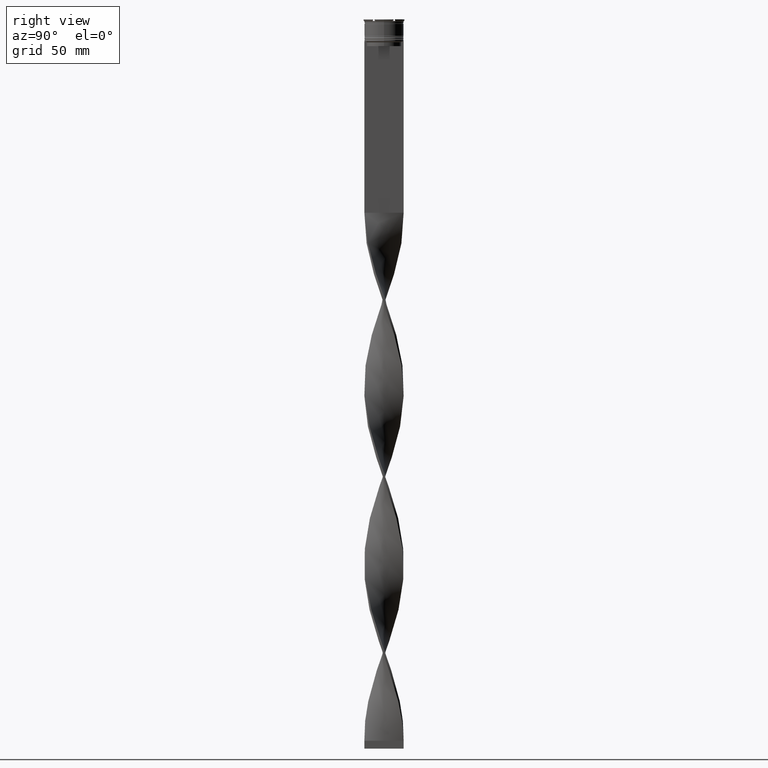
[diagram: clean part render]
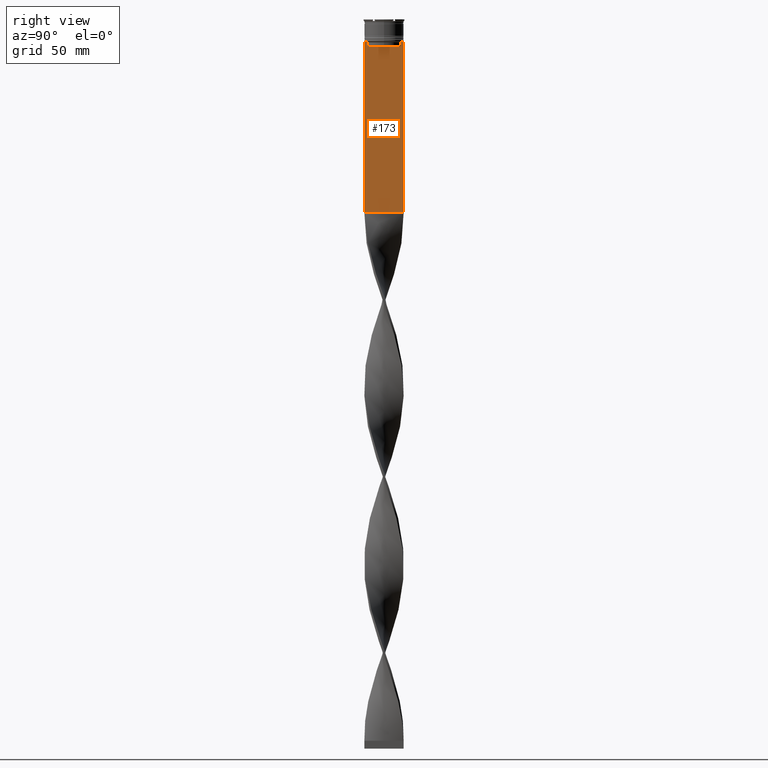
[diagram: same view with one face highlighted and labeled with its STEP entity id]
A machine part, right view. The second image highlights one B-rep face of the part: STEP entity #173.
In plain terms, the highlighted planar face has unit normal (-1, 0, 0).
Its self-contained STEP definition (entity closure, byte-faithful):
#27 = LINE ( 'NONE', #3570, #479 ) ;
#33 = LINE ( 'NONE', #2889, #1585 ) ;
#85 = EDGE_CURVE ( 'NONE', #2115, #1681, #1181, .T. ) ;
#97 = CARTESIAN_POINT ( 'NONE',  ( 0.7500000000000002220, -10.87416663473574197, 0.000000000000000000 ) ) ;
#106 = CARTESIAN_POINT ( 'NONE',  ( 0.7500000000000002220, -12.50000000000000000, 11.04495957273638673 ) ) ;
#107 = VECTOR ( 'NONE', #1839, 1000.000000000000000 ) ;
#115 = EDGE_CURVE ( 'NONE', #2546, #721, #1792, .T. ) ;
#147 = EDGE_CURVE ( 'NONE', #3866, #3305, #3436, .T. ) ;
#173 = ADVANCED_FACE ( 'NONE', ( #2612 ), #431, .F. ) ;
#246 = CARTESIAN_POINT ( 'NONE',  ( 0.7500000000000002220, -11.37530219378809093, -14.00000000000000178 ) ) ;
#261 = CARTESIAN_POINT ( 'NONE',  ( 0.7500000000000002220, -12.50000000000000000, -14.00000000000000178 ) ) ;
#373 = VERTEX_POINT ( 'NONE', #2230 ) ;
#376 = EDGE_CURVE ( 'NONE', #3605, #1296, #33, .T. ) ;
#409 = CARTESIAN_POINT ( 'NONE',  ( 0.7500000000000002220, -12.50000000000000000, 11.04495957273638673 ) ) ;
#424 = DIRECTION ( 'NONE',  ( 0.000000000000000000, 0.000000000000000000, -1.000000000000000000 ) ) ;
#431 = PLANE ( 'NONE',  #2118 ) ;
#479 = VECTOR ( 'NONE', #2487, 1000.000000000000000 ) ;
#494 = LINE ( 'NONE', #97, #2080 ) ;
#707 = VERTEX_POINT ( 'NONE', #1380 ) ;
#721 = VERTEX_POINT ( 'NONE', #2531 ) ;
#734 = CARTESIAN_POINT ( 'NONE',  ( 0.7500000000000002220, 11.04122051153452055, -14.33334204648729404 ) ) ;
#770 = VECTOR ( 'NONE', #1087, 1000.000000000000000 ) ;
#773 = DIRECTION ( 'NONE',  ( -0.000000000000000000, -0.000000000000000000, 1.000000000000000000 ) ) ;
#782 = CARTESIAN_POINT ( 'NONE',  ( 0.7500000000000002220, 11.37530219378809093, -14.00000000000000178 ) ) ;
#790 = LINE ( 'NONE', #3965, #1017 ) ;
#822 = EDGE_LOOP ( 'NONE', ( #3216, #4053, #2295, #1469, #3033, #3211, #3499, #2849, #991, #1512, #2689, #3742 ) ) ;
#865 = CARTESIAN_POINT ( 'NONE',  ( 0.7500000000000002220, -11.20826532207830439, -14.16667499063191826 ) ) ;
#991 = ORIENTED_EDGE ( 'NONE', *, *, #2009, .T. ) ;
#1017 = VECTOR ( 'NONE', #3330, 1000.000000000000000 ) ;
#1087 = DIRECTION ( 'NONE',  ( 0.000000000000000000, -1.000000000000000000, 0.000000000000000000 ) ) ;
#1181 = LINE ( 'NONE', #1580, #2198 ) ;
#1241 = LINE ( 'NONE', #3052, #4379 ) ;
#1296 = VERTEX_POINT ( 'NONE', #2082 ) ;
#1380 = CARTESIAN_POINT ( 'NONE',  ( 0.7500000000000002220, -10.87416663473574197, -14.50000000000000000 ) ) ;
#1434 = CARTESIAN_POINT ( 'NONE',  ( 0.7500000000000002220, 11.20826531587977648, -14.16667499681701514 ) ) ;
#1469 = ORIENTED_EDGE ( 'NONE', *, *, #115, .T. ) ;
#1496 = DIRECTION ( 'NONE',  ( 0.000000000000000000, -1.000000000000000000, 0.000000000000000000 ) ) ;
#1512 = ORIENTED_EDGE ( 'NONE', *, *, #4138, .T. ) ;
#1580 = CARTESIAN_POINT ( 'NONE',  ( 0.7500000000000002220, -12.50000000000000000, -14.00000000000000178 ) ) ;
#1585 = VECTOR ( 'NONE', #424, 1000.000000000000000 ) ;
#1662 = CARTESIAN_POINT ( 'NONE',  ( 0.7500000000000002220, -12.50000000000000000, -123.0000000000000000 ) ) ;
#1681 = VERTEX_POINT ( 'NONE', #2257 ) ;
#1792 = LINE ( 'NONE', #3956, #770 ) ;
#1813 = DIRECTION ( 'NONE',  ( -1.000000000000000000, 0.000000000000000000, 0.000000000000000000 ) ) ;
#1839 = DIRECTION ( 'NONE',  ( 0.000000000000000000, 0.000000000000000000, -1.000000000000000000 ) ) ;
#1841 = CARTESIAN_POINT ( 'NONE',  ( 0.7500000000000002220, 10.87416663473574197, -14.50000000000000000 ) ) ;
#1927 = CARTESIAN_POINT ( 'NONE',  ( 0.7500000000000002220, -12.50000000000000000, -14.00000000000000178 ) ) ;
#2009 = EDGE_CURVE ( 'NONE', #4648, #2164, #3206, .T. ) ;
#2080 = VECTOR ( 'NONE', #773, 1000.000000000000000 ) ;
#2082 = CARTESIAN_POINT ( 'NONE',  ( 0.7500000000000002220, 12.50000000000000000, -123.0000000000000000 ) ) ;
#2115 = VERTEX_POINT ( 'NONE', #246 ) ;
#2118 = AXIS2_PLACEMENT_3D ( 'NONE', #106, #1813, #4316 ) ;
#2164 = VERTEX_POINT ( 'NONE', #1662 ) ;
#2198 = VECTOR ( 'NONE', #2314, 1000.000000000000000 ) ;
#2230 = CARTESIAN_POINT ( 'NONE',  ( 0.7500000000000002220, 12.37729776647553059, -14.00000000000000178 ) ) ;
#2250 = CARTESIAN_POINT ( 'NONE',  ( 0.7500000000000002220, 10.87416663473574197, -14.50000000000000000 ) ) ;
#2257 = CARTESIAN_POINT ( 'NONE',  ( 0.7500000000000002220, -12.37729776647553059, -14.00000000000000178 ) ) ;
#2262 = EDGE_CURVE ( 'NONE', #373, #3866, #1241, .T. ) ;
#2295 = ORIENTED_EDGE ( 'NONE', *, *, #4130, .T. ) ;
#2314 = DIRECTION ( 'NONE',  ( 0.000000000000000000, -1.000000000000000000, 0.000000000000000000 ) ) ;
#2487 = DIRECTION ( 'NONE',  ( 0.000000000000000000, -1.000000000000000000, 0.000000000000000000 ) ) ;
#2497 = EDGE_CURVE ( 'NONE', #1681, #4648, #27, .T. ) ;
#2515 = VECTOR ( 'NONE', #3676, 1000.000000000000000 ) ;
#2531 = CARTESIAN_POINT ( 'NONE',  ( 0.7500000000000002220, -10.87416663473574019, -17.00000000000000000 ) ) ;
#2546 = VERTEX_POINT ( 'NONE', #3149 ) ;
#2603 = CARTESIAN_POINT ( 'NONE',  ( 0.7500000000000002220, -10.87416663473574197, -14.50000000000000000 ) ) ;
#2612 = FACE_OUTER_BOUND ( 'NONE', #822, .T. ) ;
#2689 = ORIENTED_EDGE ( 'NONE', *, *, #376, .F. ) ;
#2849 = ORIENTED_EDGE ( 'NONE', *, *, #2497, .T. ) ;
#2889 = CARTESIAN_POINT ( 'NONE',  ( 0.7500000000000002220, 12.50000000000000000, 11.04495957273638673 ) ) ;
#2930 = CARTESIAN_POINT ( 'NONE',  ( 0.7500000000000002220, -11.37530219378809093, -14.00000000000000178 ) ) ;
#3033 = ORIENTED_EDGE ( 'NONE', *, *, #4450, .T. ) ;
#3052 = CARTESIAN_POINT ( 'NONE',  ( 0.7500000000000002220, -12.50000000000000000, -14.00000000000000178 ) ) ;
#3149 = CARTESIAN_POINT ( 'NONE',  ( 0.7500000000000002220, 10.87416663473574019, -17.00000000000000000 ) ) ;
#3206 = LINE ( 'NONE', #409, #107 ) ;
#3211 = ORIENTED_EDGE ( 'NONE', *, *, #4427, .T. ) ;
#3216 = ORIENTED_EDGE ( 'NONE', *, *, #2262, .T. ) ;
#3305 = VERTEX_POINT ( 'NONE', #2250 ) ;
#3330 = DIRECTION ( 'NONE',  ( 0.000000000000000000, 1.000000000000000000, 0.000000000000000000 ) ) ;
#3436 = B_SPLINE_CURVE_WITH_KNOTS ( 'NONE', 3,
 ( #782, #1434, #734, #1841 ),
 .UNSPECIFIED., .F., .F.,
 ( 4, 4 ),
 ( 0.01936090553552769281, 0.02006881572333104116 ),
 .UNSPECIFIED. ) ;
#3499 = ORIENTED_EDGE ( 'NONE', *, *, #85, .T. ) ;
#3570 = CARTESIAN_POINT ( 'NONE',  ( 0.7500000000000002220, -12.50000000000000000, -14.00000000000000178 ) ) ;
#3582 = B_SPLINE_CURVE_WITH_KNOTS ( 'NONE', 3,
 ( #2603, #4038, #865, #2930 ),
 .UNSPECIFIED., .F., .F.,
 ( 4, 4 ),
 ( 0.05009718908159448147, 0.05081156920313959630 ),
 .UNSPECIFIED. ) ;
#3605 = VERTEX_POINT ( 'NONE', #4350 ) ;
#3676 = DIRECTION ( 'NONE',  ( 0.000000000000000000, 0.000000000000000000, -1.000000000000000000 ) ) ;
#3742 = ORIENTED_EDGE ( 'NONE', *, *, #4425, .T. ) ;
#3866 = VERTEX_POINT ( 'NONE', #4634 ) ;
#3956 = CARTESIAN_POINT ( 'NONE',  ( 0.7500000000000002220, 10.90000000000000213, -17.00000000000000000 ) ) ;
#3965 = CARTESIAN_POINT ( 'NONE',  ( 0.7500000000000002220, -12.50000000000000000, -123.0000000000000000 ) ) ;
#4012 = LINE ( 'NONE', #4387, #2515 ) ;
#4038 = CARTESIAN_POINT ( 'NONE',  ( 0.7500000000000002220, -11.04122051801870441, -14.33334204001847567 ) ) ;
#4053 = ORIENTED_EDGE ( 'NONE', *, *, #147, .T. ) ;
#4090 = LINE ( 'NONE', #1927, #4561 ) ;
#4130 = EDGE_CURVE ( 'NONE', #3305, #2546, #4012, .T. ) ;
#4138 = EDGE_CURVE ( 'NONE', #2164, #1296, #790, .T. ) ;
#4316 = DIRECTION ( 'NONE',  ( 0.000000000000000000, 0.000000000000000000, 1.000000000000000000 ) ) ;
#4350 = CARTESIAN_POINT ( 'NONE',  ( 0.7500000000000002220, 12.50000000000000000, -14.00000000000000178 ) ) ;
#4379 = VECTOR ( 'NONE', #4514, 1000.000000000000000 ) ;
#4387 = CARTESIAN_POINT ( 'NONE',  ( 0.7500000000000002220, 10.87416663473574197, 0.000000000000000000 ) ) ;
#4425 = EDGE_CURVE ( 'NONE', #3605, #373, #4090, .T. ) ;
#4427 = EDGE_CURVE ( 'NONE', #707, #2115, #3582, .T. ) ;
#4450 = EDGE_CURVE ( 'NONE', #721, #707, #494, .T. ) ;
#4514 = DIRECTION ( 'NONE',  ( 0.000000000000000000, -1.000000000000000000, 0.000000000000000000 ) ) ;
#4561 = VECTOR ( 'NONE', #1496, 1000.000000000000000 ) ;
#4634 = CARTESIAN_POINT ( 'NONE',  ( 0.7500000000000002220, 11.37530219378809093, -14.00000000000000178 ) ) ;
#4648 = VERTEX_POINT ( 'NONE', #261 ) ;